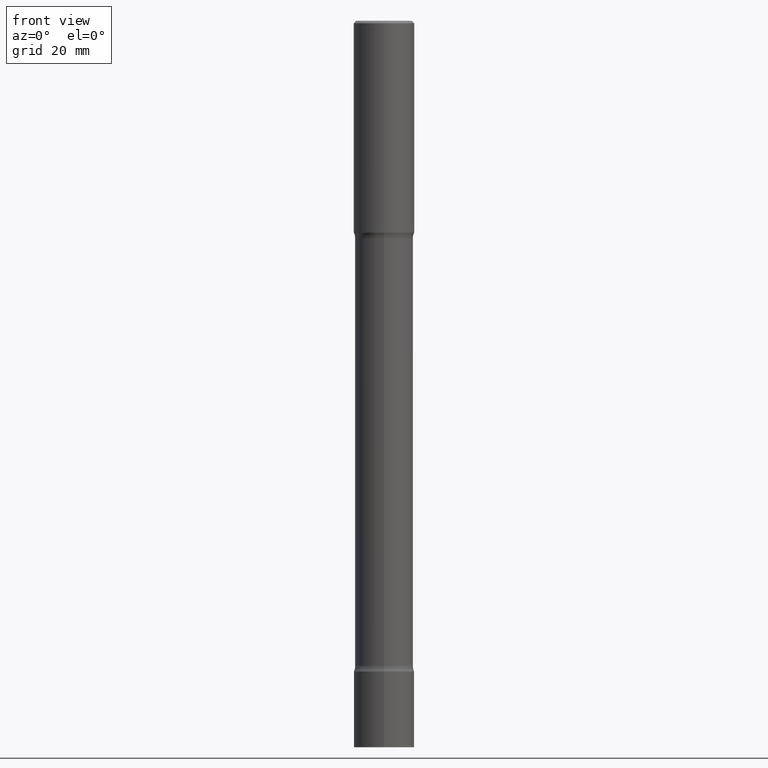
[diagram: clean part render]
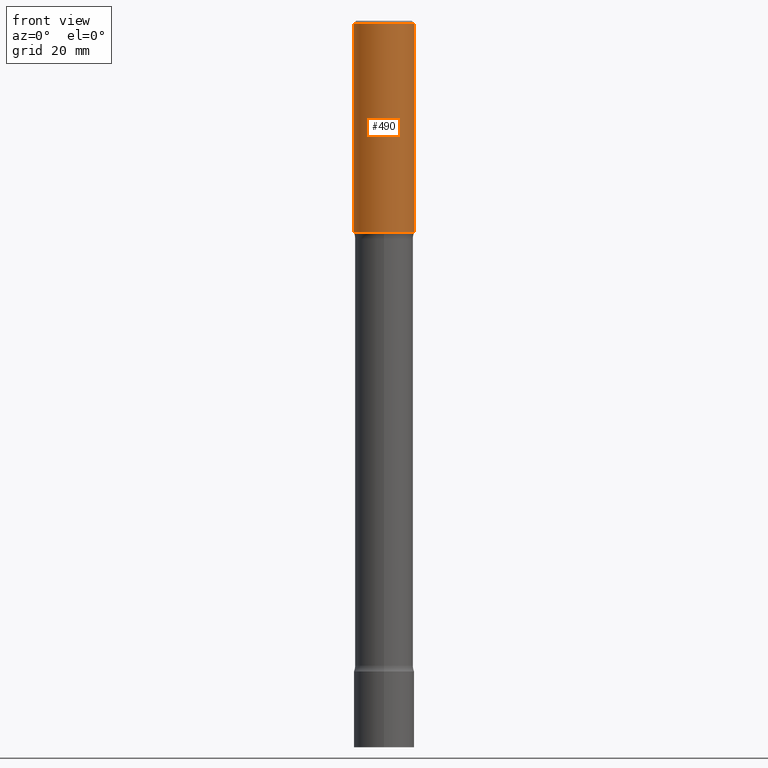
[diagram: same view with one face highlighted and labeled with its STEP entity id]
A machine part, front view. The second image highlights one B-rep face of the part: STEP entity #490.
In plain terms, the highlighted cylindrical surface (edge-blend (fillet) strip) has radius 6.35 mm, axis along (-0, 0, 1).
Its self-contained STEP definition (entity closure, byte-faithful):
#5 = EDGE_CURVE ( 'NONE', #189, #86, #404, .T. ) ;
#50 = EDGE_CURVE ( 'NONE', #341, #86, #347, .T. ) ;
#76 = CARTESIAN_POINT ( 'NONE',  ( 0.2499999999999998612, -1.745740669421565692E-15, 1.219044193948983248E-29 ) ) ;
#86 = VERTEX_POINT ( 'NONE', #237 ) ;
#88 = CARTESIAN_POINT ( 'NONE',  ( -0.2499999999999997224, 1.675911042644701999E-15, -0.02000000000000000042 ) ) ;
#99 = CARTESIAN_POINT ( 'NONE',  ( 0.000000000000000000, 0.000000000000000000, 0.000000000000000000 ) ) ;
#115 = ORIENTED_EDGE ( 'NONE', *, *, #211, .T. ) ;
#135 = VECTOR ( 'NONE', #388, 39.37007874015748143 ) ;
#189 = VERTEX_POINT ( 'NONE', #88 ) ;
#193 = DIRECTION ( 'NONE',  ( -2.445468806185136597E-29, 3.491481338843145583E-15, 1.000000000000000000 ) ) ;
#202 = CARTESIAN_POINT ( 'NONE',  ( 0.2500000000000000000, -7.855833012397075293E-15, -1.750000000000001332 ) ) ;
#211 = EDGE_CURVE ( 'NONE', #313, #341, #428, .T. ) ;
#219 = ORIENTED_EDGE ( 'NONE', *, *, #50, .T. ) ;
#237 = CARTESIAN_POINT ( 'NONE',  ( 0.2499999999999997224, -1.784954126219743822E-15, -0.02000000000000000042 ) ) ;
#244 = AXIS2_PLACEMENT_3D ( 'NONE', #99, #433, #424 ) ;
#254 = LINE ( 'NONE', #467, #135 ) ;
#272 = CARTESIAN_POINT ( 'NONE',  ( 4.279570410823991847E-29, -6.110092342975509404E-15, -1.750000000000001332 ) ) ;
#313 = VERTEX_POINT ( 'NONE', #450 ) ;
#335 = AXIS2_PLACEMENT_3D ( 'NONE', #343, #352, #502 ) ;
#341 = VERTEX_POINT ( 'NONE', #202 ) ;
#343 = CARTESIAN_POINT ( 'NONE',  ( 4.890937612370273159E-31, -6.982962677686291609E-17, -0.02000000000000000042 ) ) ;
#347 = LINE ( 'NONE', #76, #469 ) ;
#352 = DIRECTION ( 'NONE',  ( -2.445468806185136597E-29, 3.491481338843145583E-15, 1.000000000000000000 ) ) ;
#368 = DIRECTION ( 'NONE',  ( 1.000000000000000000, -6.982962677686266711E-15, 0.000000000000000000 ) ) ;
#381 = AXIS2_PLACEMENT_3D ( 'NONE', #272, #193, #368 ) ;
#388 = DIRECTION ( 'NONE',  ( -2.445468806185136877E-29, 3.491481338843145188E-15, 1.000000000000000000 ) ) ;
#389 = DIRECTION ( 'NONE',  ( -2.445468806185136877E-29, 3.491481338843145188E-15, 1.000000000000000000 ) ) ;
#404 = CIRCLE ( 'NONE', #335, 0.2499999999999997224 ) ;
#424 = DIRECTION ( 'NONE',  ( 1.000000000000000000, -6.982962677686266711E-15, 4.876176775795935793E-29 ) ) ;
#428 = CIRCLE ( 'NONE', #381, 0.2500000000000000000 ) ;
#433 = DIRECTION ( 'NONE',  ( -2.445468806185136597E-29, 3.491481338843145583E-15, 1.000000000000000000 ) ) ;
#434 = ORIENTED_EDGE ( 'NONE', *, *, #5, .F. ) ;
#449 = EDGE_CURVE ( 'NONE', #313, #189, #254, .T. ) ;
#450 = CARTESIAN_POINT ( 'NONE',  ( -0.2499999999999999722, -1.313604145475934309E-15, -1.750000000000001332 ) ) ;
#451 = EDGE_LOOP ( 'NONE', ( #458, #115, #219, #434 ) ) ;
#458 = ORIENTED_EDGE ( 'NONE', *, *, #449, .F. ) ;
#462 = FACE_OUTER_BOUND ( 'NONE', #451, .T. ) ;
#467 = CARTESIAN_POINT ( 'NONE',  ( -0.2499999999999998612, 1.776356839400249479E-15, -1.229733772563725745E-29 ) ) ;
#469 = VECTOR ( 'NONE', #389, 39.37007874015748143 ) ;
#490 = ADVANCED_FACE ( 'NONE', ( #462 ), #508, .T. ) ;
#502 = DIRECTION ( 'NONE',  ( 1.000000000000000000, -6.982962677686266711E-15, 0.000000000000000000 ) ) ;
#508 = CYLINDRICAL_SURFACE ( 'NONE', #244, 0.2499999999999998612 ) ;